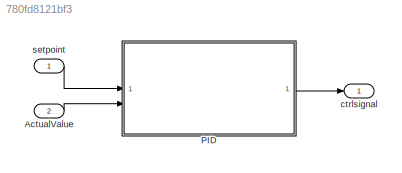
MODEL slx_780fd8121bf3
KIND model
CONFIG AbsTol = auto
CONFIG EnableMultiTasking = off
CONFIG FixedStep = 0.01
CONFIG MaxStep = auto
CONFIG MinStep = auto
CONFIG RelTol = 1e-3
CONFIG SampleTimeConstraint = Unconstrained
CONFIG SolverName = FixedStepDiscrete
CONFIG StartTime = 0.0
CONFIG StopTime = 100.0
BLOCK [Inport] ActualValue
  Port = 2
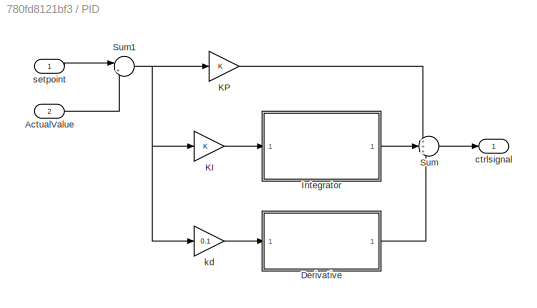
BLOCK [SubSystem] PID
  TreatAsAtomicUnit = on
BLOCK [Inport] PID/ActualValue
  Port = 2
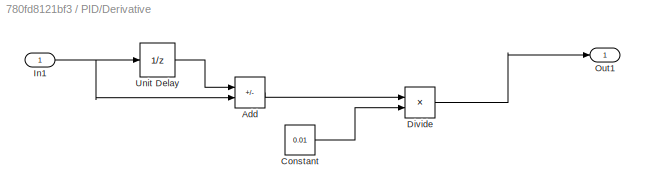
BLOCK [SubSystem] PID/Derivative
BLOCK [Sum] PID/Derivative/Add
  IconShape = rectangular
  Inputs = -+
BLOCK [Constant] PID/Derivative/Constant
  Value = 0.01
BLOCK [Product] PID/Derivative/Divide
  Inputs = */
BLOCK [Inport] PID/Derivative/In1
BLOCK [Outport] PID/Derivative/Out1
BLOCK [UnitDelay] PID/Derivative/Unit Delay
  HasFrameUpgradeWarning = on
  SampleTime = -1
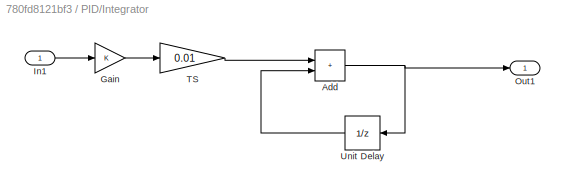
BLOCK [SubSystem] PID/Integrator
BLOCK [Sum] PID/Integrator/Add
  IconShape = rectangular
BLOCK [Gain] PID/Integrator/Gain
BLOCK [Inport] PID/Integrator/In1
BLOCK [Outport] PID/Integrator/Out1
BLOCK [Gain] PID/Integrator/TS
  Gain = 0.01
BLOCK [UnitDelay] PID/Integrator/Unit Delay
  HasFrameUpgradeWarning = on
  SampleTime = -1
BLOCK [Gain] PID/KI
BLOCK [Gain] PID/KP
BLOCK [Sum] PID/Sum
  Inputs = +++
BLOCK [Sum] PID/Sum1
  Inputs = |+-
BLOCK [Outport] PID/ctrlsignal
BLOCK [Gain] PID/kd
  Gain = 0.1
BLOCK [Inport] PID/setpoint
BLOCK [Outport] ctrlsignal
BLOCK [Inport] setpoint
LINE ActualValue:1 -> PID:2
LINE PID/ActualValue:1 -> PID/Sum1:2
LINE PID/Derivative/Add:1 -> PID/Derivative/Divide:1
LINE PID/Derivative/Constant:1 -> PID/Derivative/Divide:2
LINE PID/Derivative/Divide:1 -> PID/Derivative/Out1:1
NET PID/Derivative/In1:1 -> PID/Derivative/Add:2, PID/Derivative/Unit Delay:1
LINE PID/Derivative/Unit Delay:1 -> PID/Derivative/Add:1
LINE PID/Derivative:1 -> PID/Sum:3
NET PID/Integrator/Add:1 -> PID/Integrator/Out1:1, PID/Integrator/Unit Delay:1
LINE PID/Integrator/Gain:1 -> PID/Integrator/TS:1
LINE PID/Integrator/In1:1 -> PID/Integrator/Gain:1
LINE PID/Integrator/TS:1 -> PID/Integrator/Add:1
LINE PID/Integrator/Unit Delay:1 -> PID/Integrator/Add:2
LINE PID/Integrator:1 -> PID/Sum:2
LINE PID/KI:1 -> PID/Integrator:1
LINE PID/KP:1 -> PID/Sum:1
NET PID/Sum1:1 -> PID/KI:1, PID/KP:1, PID/kd:1
LINE PID/Sum:1 -> PID/ctrlsignal:1
LINE PID/kd:1 -> PID/Derivative:1
LINE PID/setpoint:1 -> PID/Sum1:1
LINE PID:1 -> ctrlsignal:1
LINE setpoint:1 -> PID:1
note: NET lines group one-source signal fan-out (src -> all destinations, sorted); 1:1 wires keep LINE
